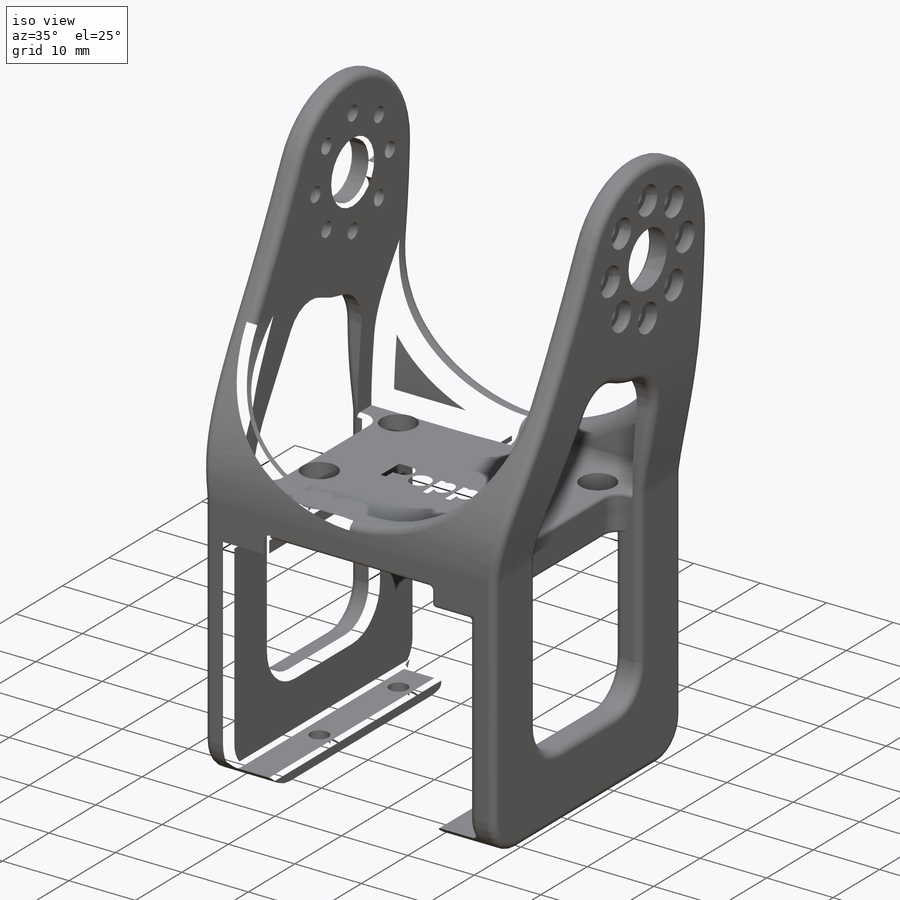
[diagram: iso view]
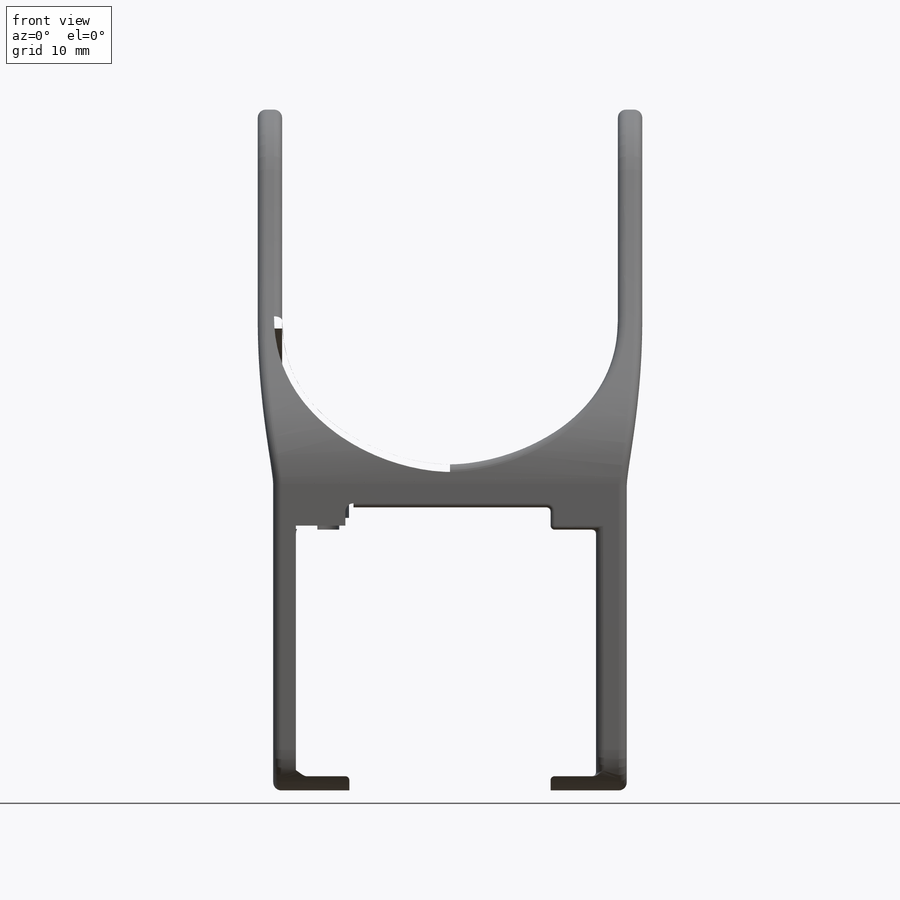
[diagram: front view]
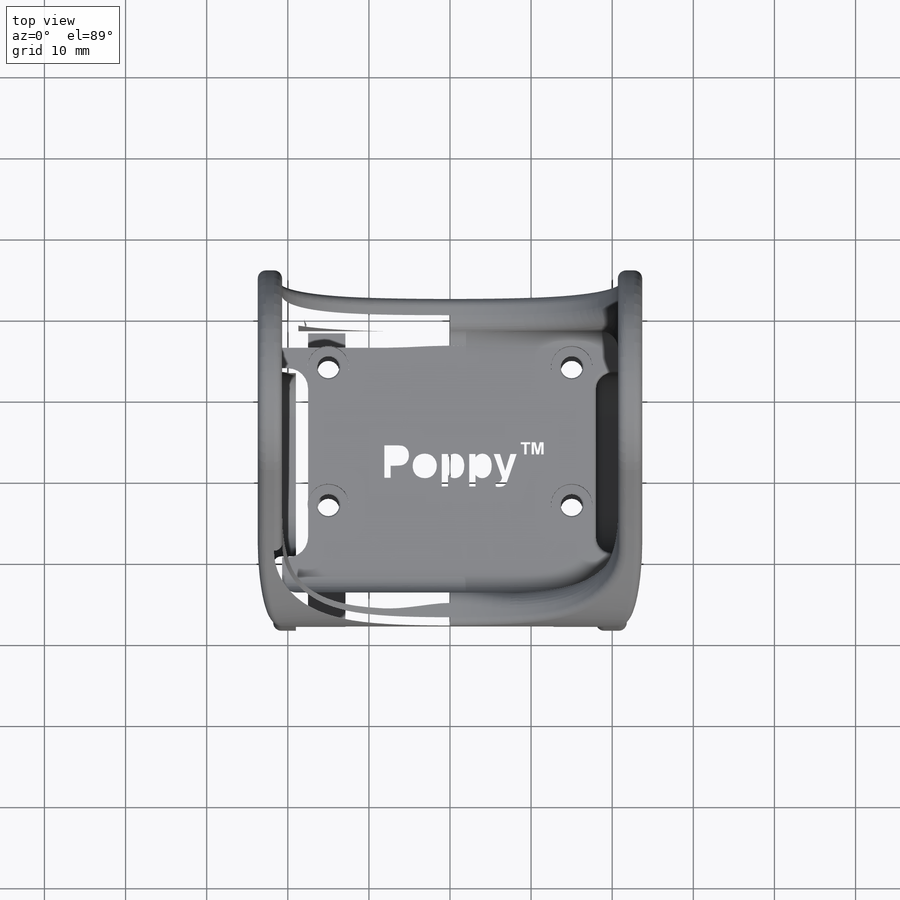
[diagram: top view]
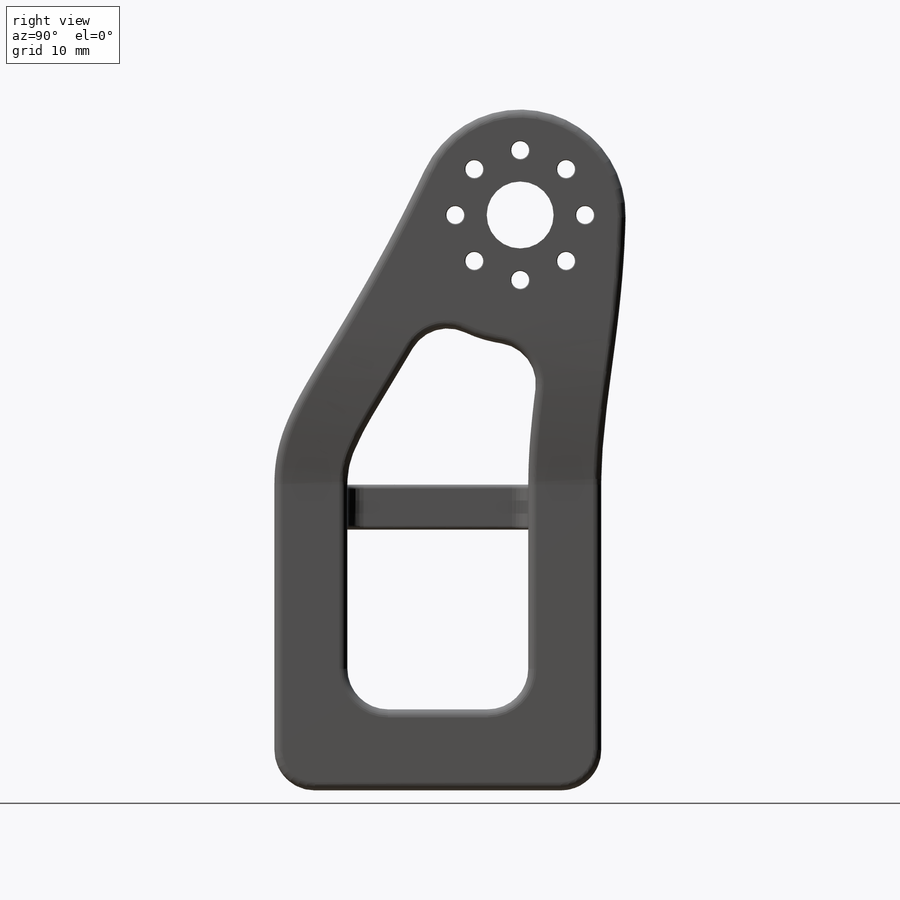
[diagram: right view]
SOLIDWORKS PART (.sldprt)
format: sldprt  version: not decoded by parser v0  size: 1,975,808 bytes
history: native  units: mm
features: sketch x19, fillet x14, plane x12, cut_extrude x10, hole x2, mirror x2, material x1, extrude x1, chamfer x1 (+11 scaffold rows collapsed; 2 parser-record rows omitted)
feature tree (75):
  scaffold x11  (default folders/planes/origin — collapsed)
  material  "Polyamide"
  plane  "Plan de face"
  plane  "Plan de dessus"
  plane  "Plan de droite"
  plane  "RotationTOrse"  Offset=39mm
  plane  "PlanFixRoationTorse"  Offset=20.7mm
  sketch  "TrousBuste"  dims[D12=3.0mm D1=51.6mm D2=17.8mm D3=12.0mm D4=5.6mm D5=2.8mm D6=5.6mm D7=2.8mm D8=17.0mm D9=17.0mm D10=6.5mm D11=8.5mm]
  sketch  "TrousTorse"  dims[c1.D2=22.0mm c1.D3=16.0mm c1.D6=2.0mm c1.D1=2.0mm c1.D4=8.5mm c2.D4=0.0deg c3.D4=~9.515605mm c4.D4=60.0deg c4.D5=8.0]
  plane  "Plan3"  Offset=30mm
  sketch  "FormeMoteurBuste"  dims[D1=2.75mm]
  sketch  "Esquisse12"  dims[D1=0.2mm]
  plane  "PlanSupportMoteurBuste"
  plane  "Epaisseur"  Offset=3mm
  sketch  "FormeDroite"  dims[c1.D1=~15.201167mm c1.D4=~72.026616mm c2.D1=2.0mm c2.D2=2.0mm c2.D3=15.0mm c2.D4=23.0mm]
  sketch  "FormeFace"  dims[D1=3.0mm D2=4.0mm D3=2.5mm D4=1.0mm]
  plane  "middle_motor_plane"
  parser-record x2  (decoder bookkeeping rows leaked as tree rows — omitted from the tree; the rows remain in map.json)
  sketch  "Esquisse9"
  extrude  "Boss.-Extru.1"  Depth=50mm
  cut_extrude  "Enlèv. mat.-Extru.1"  [1 undecoded]
  cut_extrude  "Enlèv. mat.-Extru.2"  [1 undecoded]
  cut_extrude  "Enlèv. mat.-Extru.3"  [1 undecoded]
  sketch  "Esquisse23"  dims[D1=1.5mm D2=3.0mm D3=0.4mm]
  sketch  "Esquisse21"
  cut_extrude  "Enlèv. mat.-Extru.7"  [1 undecoded]
  sketch  "Esquisse25"
  cut_extrude  "Enlèv. mat.-Extru.9"  [1 undecoded]
  sketch  "Esquisse13"  dims[c1.D1=3.0mm c1.D2=4.0mm c1.D3=4.0mm c2.D1=4.0mm c2.D2=4.0mm c2.D3=4.0mm]
  cut_extrude  "Enlèv. mat.-Extru.4"  [1 undecoded]
  plane  "Plan6"  Offset=20mm
  hole  "Chambrage pour vis à tête hexagonale M2.51"  Diameter=2.7mm Depth=25mm
  sketch  "Esquisse15"
  sketch  "Esquisse14"  dims[hole-wizard template sketch: 27 standard entries collapsed; hole parameters kept: c8.Profondeur du perçage=25.0mm c8.Diamètre du chambrage=5.1mm c8.Profondeur du chambrage=18.35mm c8.Diamètre du fraisage milieu=3.0mm c8.D6=~5.388154mm c8.Angle du fraisage milieu=90.0deg c8.D7=~14.816244mm c8.Angle de pointe=118.0deg]
  plane  "Plan7"
  mirror  "Symétrie1"
  plane  "Plan8"  Offset=10mm
  hole  "Chambrage pour vis à tête hexagonale M23"  Diameter=2.2mm Depth=32.186846mm
  sketch  "Esquisse17"
  sketch  "Esquisse16"  dims[hole-wizard template sketch: 42 standard entries collapsed; hole parameters kept: c12.Profondeur du perçage jusqu'au prochain=~32.186846mm c12.Diamètre du chambrage=4.2mm c12.Profondeur du chambrage=8.7mm c12.Diamètre du fraisage milieu=2.4mm c12.D6=~5.388154mm c12.Angle du fraisage milieu=90.0deg]
  sketch  "Esquisse18"  dims[D1=8.25mm]
  cut_extrude  "Enlèv. mat.-Extru.5"  Depth=50mm
  sketch  "Esquisse22"  dims[D3=32.0mm D2=10.0mm D1=9.0mm]
  cut_extrude  "Enlèv. mat.-Extru.8"  [1 undecoded]
  fillet  "Congé3"  Radius=5mm
  fillet  "Congé4"  Radius=5mm
  fillet  "Congé5"  Radius=1mm
  fillet  "Congé6"  Radius=1mm
  fillet  "Congé7"  Radius=1mm
  fillet  "Congé8"  Radius=2mm
  fillet  "Congé9"  Radius=0.5mm
  fillet  "Congé14"  Radius=0.5mm
  fillet  "Congé10"  Radius=2mm
  fillet  "Congé11"  Radius=2mm
  fillet  "Congé12"  Radius=2mm
  chamfer  "Chanfrein1"  Distance=0.5mm Angle=45deg
  fillet  "Congé15"  Radius=0.5mm
  fillet  "Congé16"  Radius=0.75mm
  fillet  "Congé17"  Radius=1mm
  mirror  "Symétrie2"
  sketch  "Sketch1"  dims[D1=0.75mm D2=1.0mm]
  cut_extrude  "Cut-Extrude1"  Depth=1mm
  sketch  "Sketch2"  dims[D1=10.0mm D2=8.5mm]
  cut_extrude  "watermark_poppy"  Depth=1mm
decode coverage: 35 of 49 modeling features carry decoded parameters
note: ~ marks probable driven/reference dimensions
note: 7 parameter values undecoded
summary: no parameter record found for 7 features
note: suppression state not decoded; provenance and decode notes live in map.json
